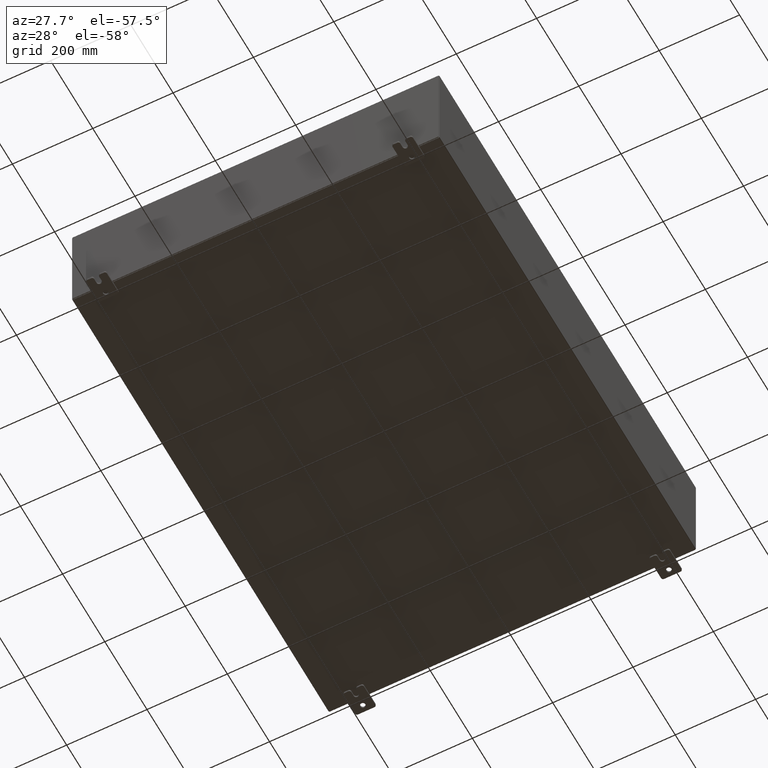
[diagram: clean part render]
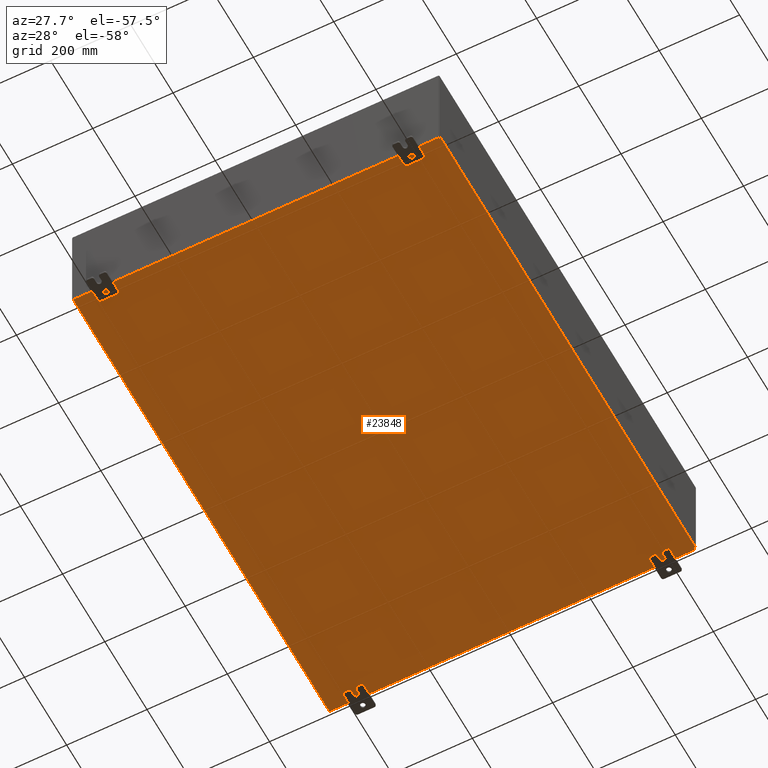
[diagram: same view with one face highlighted and labeled with its STEP entity id]
A machine part, auxiliary view. The second image highlights one B-rep face of the part: STEP entity #23848.
In plain terms, the highlighted planar face has unit normal (0, 0, -1).
Its self-contained STEP definition (entity closure, byte-faithful):
#2459 = ORIENTED_EDGE ( 'NONE', *, *, #57008, .T. ) ;
#7137 = VECTOR ( 'NONE', #85291, 39.37007874015748100 ) ;
#10607 = CARTESIAN_POINT ( 'NONE',  ( -18.00000000000000400, -23.92530000000000400, -0.07470000000000000300 ) ) ;
#12548 = CARTESIAN_POINT ( 'NONE',  ( -18.00000000000000400, 23.92530000000000000, -0.07470000000000000300 ) ) ;
#14761 = CARTESIAN_POINT ( 'NONE',  ( -17.91230000000000500, -23.92529999999998900, -0.07469999999999994700 ) ) ;
#17380 = DIRECTION ( 'NONE',  ( -1.000000000000000000, 0.0000000000000000000, -0.0000000000000000000 ) ) ;
#22952 = DIRECTION ( 'NONE',  ( -1.000000000000000000, -0.0000000000000000000, -0.0000000000000000000 ) ) ;
#23203 = CARTESIAN_POINT ( 'NONE',  ( 17.91229999999999500, 23.92529999999998900, -0.07469999999999688000 ) ) ;
#23848 = ADVANCED_FACE ( 'NONE', ( #103256 ), #131124, .T. ) ;
#24914 = LINE ( 'NONE', #10607, #128652 ) ;
#25161 = DIRECTION ( 'NONE',  ( -0.0000000000000000000, 1.000000000000000000, -0.0000000000000000000 ) ) ;
#25178 = VECTOR ( 'NONE', #25161, 39.37007874015748100 ) ;
#29465 = EDGE_CURVE ( 'NONE', #129771, #79395, #81491, .T. ) ;
#37867 = LINE ( 'NONE', #23203, #7137 ) ;
#41269 = ORIENTED_EDGE ( 'NONE', *, *, #109584, .T. ) ;
#52794 = AXIS2_PLACEMENT_3D ( 'NONE', #69022, #79455, #17380 ) ;
#54147 = EDGE_CURVE ( 'NONE', #79683, #71245, #24914, .T. ) ;
#57008 = EDGE_CURVE ( 'NONE', #129771, #71245, #37867, .T. ) ;
#69022 = CARTESIAN_POINT ( 'NONE',  ( 0.0000000000000000000, 0.0000000000000000000, -0.07470000000000000300 ) ) ;
#71245 = VERTEX_POINT ( 'NONE', #122751 ) ;
#79395 = VERTEX_POINT ( 'NONE', #85416 ) ;
#79455 = DIRECTION ( 'NONE',  ( 0.0000000000000000000, 0.0000000000000000000, -1.000000000000000000 ) ) ;
#79683 = VERTEX_POINT ( 'NONE', #120663 ) ;
#80307 = LINE ( 'NONE', #14761, #25178 ) ;
#81491 = LINE ( 'NONE', #12548, #84754 ) ;
#84754 = VECTOR ( 'NONE', #22952, 39.37007874015748100 ) ;
#85291 = DIRECTION ( 'NONE',  ( -0.0000000000000000000, -1.000000000000000000, -8.208677865577646300E-017 ) ) ;
#85416 = CARTESIAN_POINT ( 'NONE',  ( -17.91230000000000500, 23.92529999999998900, -0.07470000000000000300 ) ) ;
#87059 = CARTESIAN_POINT ( 'NONE',  ( 17.91229999999999500, 23.92529999999998600, -0.07469999999999688000 ) ) ;
#101388 = ORIENTED_EDGE ( 'NONE', *, *, #29465, .F. ) ;
#103256 = FACE_OUTER_BOUND ( 'NONE', #105169, .T. ) ;
#103861 = DIRECTION ( 'NONE',  ( 1.000000000000000000, 1.214154663850783700E-016, 0.0000000000000000000 ) ) ;
#105169 = EDGE_LOOP ( 'NONE', ( #106223, #41269, #101388, #2459 ) ) ;
#106223 = ORIENTED_EDGE ( 'NONE', *, *, #54147, .F. ) ;
#109584 = EDGE_CURVE ( 'NONE', #79683, #79395, #80307, .T. ) ;
#120663 = CARTESIAN_POINT ( 'NONE',  ( -17.91230000000000500, -23.92529999999998600, -0.07469999999999994700 ) ) ;
#122751 = CARTESIAN_POINT ( 'NONE',  ( 17.91229999999999500, -23.92530000000000000, -0.07470000000000000300 ) ) ;
#128652 = VECTOR ( 'NONE', #103861, 39.37007874015748100 ) ;
#129771 = VERTEX_POINT ( 'NONE', #87059 ) ;
#131124 = PLANE ( 'NONE',  #52794 ) ;